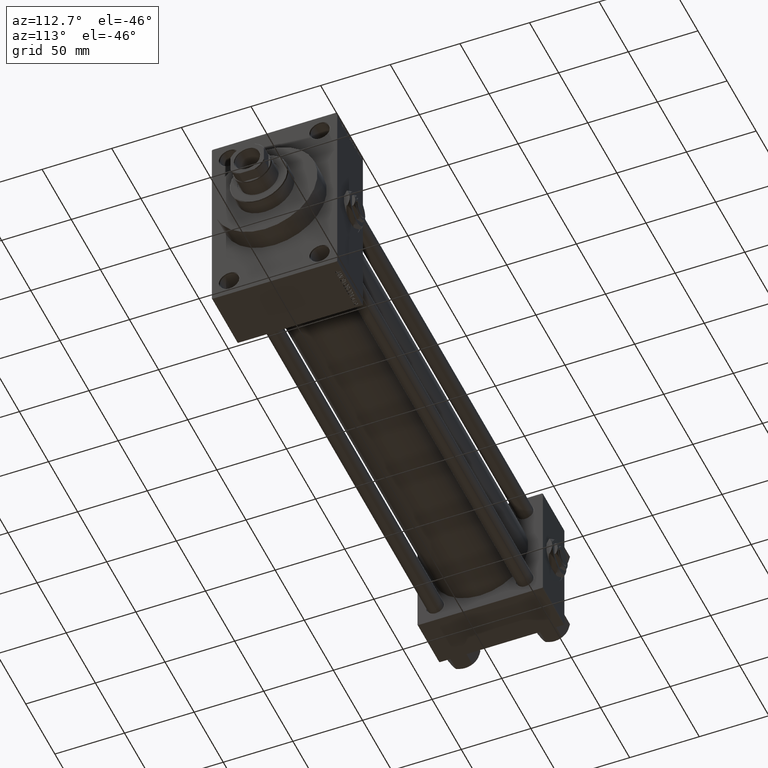
[diagram: clean part render]
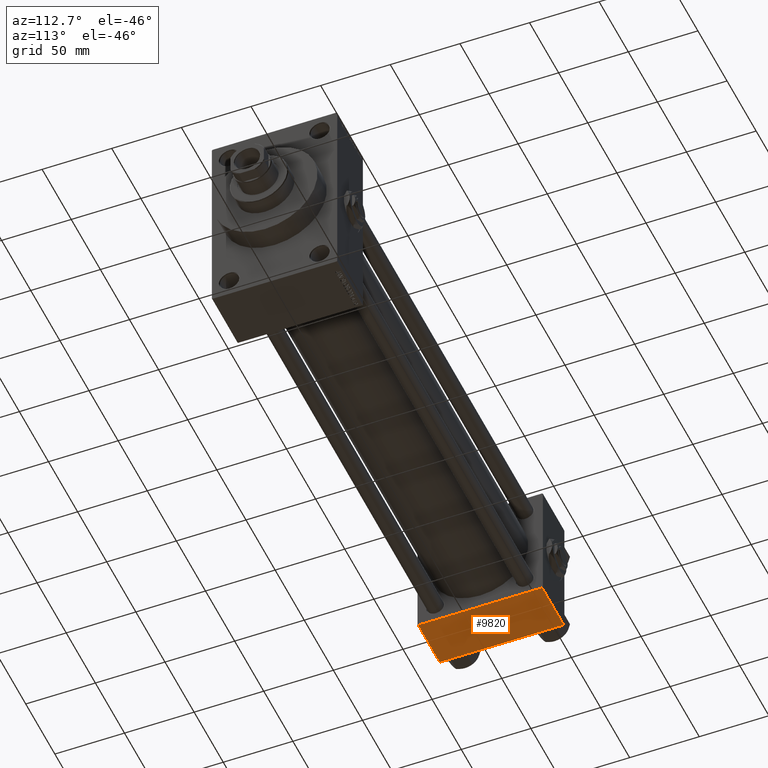
[diagram: same view with one face highlighted and labeled with its STEP entity id]
A machine part, auxiliary view. The second image highlights one B-rep face of the part: STEP entity #9820.
In plain terms, the highlighted planar face has unit normal (0, 0, -1).
Its self-contained STEP definition (entity closure, byte-faithful):
#579 = CARTESIAN_POINT ( 'NONE',  ( 0.000000000000000000, 44.99999999999998579, -44.99999999999998579 ) ) ;
#1655 = EDGE_LOOP ( 'NONE', ( #15882, #45770, #21618, #21755 ) ) ;
#3310 = EDGE_CURVE ( 'NONE', #28146, #21570, #29539, .T. ) ;
#4020 = EDGE_CURVE ( 'NONE', #13374, #21570, #30722, .T. ) ;
#4385 = CARTESIAN_POINT ( 'NONE',  ( 37.00000000000000000, 44.49999999999998579, -44.99999999999998579 ) ) ;
#4981 = VECTOR ( 'NONE', #40966, 1000.000000000000000 ) ;
#6291 = VECTOR ( 'NONE', #18091, 1000.000000000000000 ) ;
#7138 = VECTOR ( 'NONE', #16265, 1000.000000000000000 ) ;
#7910 = PLANE ( 'NONE',  #27212 ) ;
#8591 = CARTESIAN_POINT ( 'NONE',  ( 37.00000000000000000, 44.99999999999998579, -44.99999999999998579 ) ) ;
#9820 = ADVANCED_FACE ( 'NONE', ( #42051 ), #7910, .T. ) ;
#10368 = CARTESIAN_POINT ( 'NONE',  ( 0.000000000000000000, -44.49999999999998579, -45.00000000000000000 ) ) ;
#11352 = EDGE_CURVE ( 'NONE', #13374, #14680, #11779, .T. ) ;
#11779 = LINE ( 'NONE', #33718, #4981 ) ;
#12319 = LINE ( 'NONE', #8591, #14896 ) ;
#13374 = VERTEX_POINT ( 'NONE', #36613 ) ;
#14680 = VERTEX_POINT ( 'NONE', #4385 ) ;
#14896 = VECTOR ( 'NONE', #20055, 1000.000000000000000 ) ;
#15882 = ORIENTED_EDGE ( 'NONE', *, *, #4020, .F. ) ;
#16265 = DIRECTION ( 'NONE',  ( 0.000000000000000000, -1.000000000000000000, -1.541976423090495633E-16 ) ) ;
#18091 = DIRECTION ( 'NONE',  ( -1.000000000000000000, 0.000000000000000000, 0.000000000000000000 ) ) ;
#20055 = DIRECTION ( 'NONE',  ( 0.000000000000000000, -1.000000000000000000, -1.541976423090495633E-16 ) ) ;
#21570 = VERTEX_POINT ( 'NONE', #49062 ) ;
#21618 = ORIENTED_EDGE ( 'NONE', *, *, #47183, .T. ) ;
#21755 = ORIENTED_EDGE ( 'NONE', *, *, #3310, .T. ) ;
#26601 = CARTESIAN_POINT ( 'NONE',  ( 37.00000000000000000, 44.99999999999998579, -44.99999999999998579 ) ) ;
#27212 = AXIS2_PLACEMENT_3D ( 'NONE', #26601, #33575, #48786 ) ;
#28146 = VERTEX_POINT ( 'NONE', #37445 ) ;
#29539 = LINE ( 'NONE', #10368, #6291 ) ;
#30722 = LINE ( 'NONE', #579, #7138 ) ;
#33575 = DIRECTION ( 'NONE',  ( 0.000000000000000000, 1.541976423090495880E-16, -1.000000000000000000 ) ) ;
#33718 = CARTESIAN_POINT ( 'NONE',  ( 37.00000000000000000, 44.49999999999998579, -44.99999999999998579 ) ) ;
#36613 = CARTESIAN_POINT ( 'NONE',  ( 0.000000000000000000, 44.49999999999998579, -44.99999999999998579 ) ) ;
#37445 = CARTESIAN_POINT ( 'NONE',  ( 37.00000000000000000, -44.49999999999995737, -45.00000000000000000 ) ) ;
#40966 = DIRECTION ( 'NONE',  ( 1.000000000000000000, 0.000000000000000000, 0.000000000000000000 ) ) ;
#42051 = FACE_OUTER_BOUND ( 'NONE', #1655, .T. ) ;
#45770 = ORIENTED_EDGE ( 'NONE', *, *, #11352, .T. ) ;
#47183 = EDGE_CURVE ( 'NONE', #14680, #28146, #12319, .T. ) ;
#48786 = DIRECTION ( 'NONE',  ( 0.000000000000000000, 1.000000000000000000, 1.541976423090495880E-16 ) ) ;
#49062 = CARTESIAN_POINT ( 'NONE',  ( 0.000000000000000000, -44.49999999999995737, -45.00000000000000000 ) ) ;